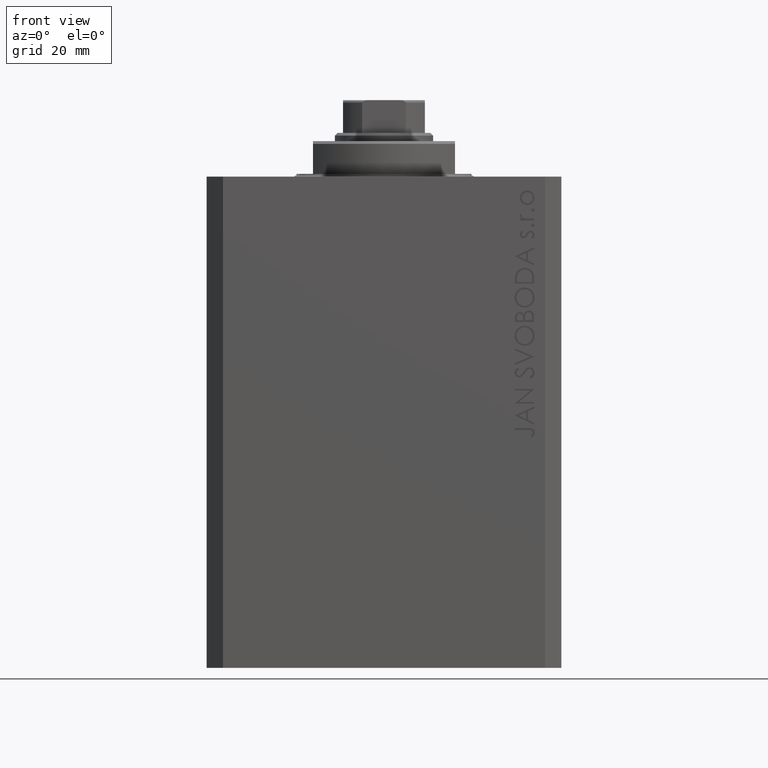
[diagram: clean part render]
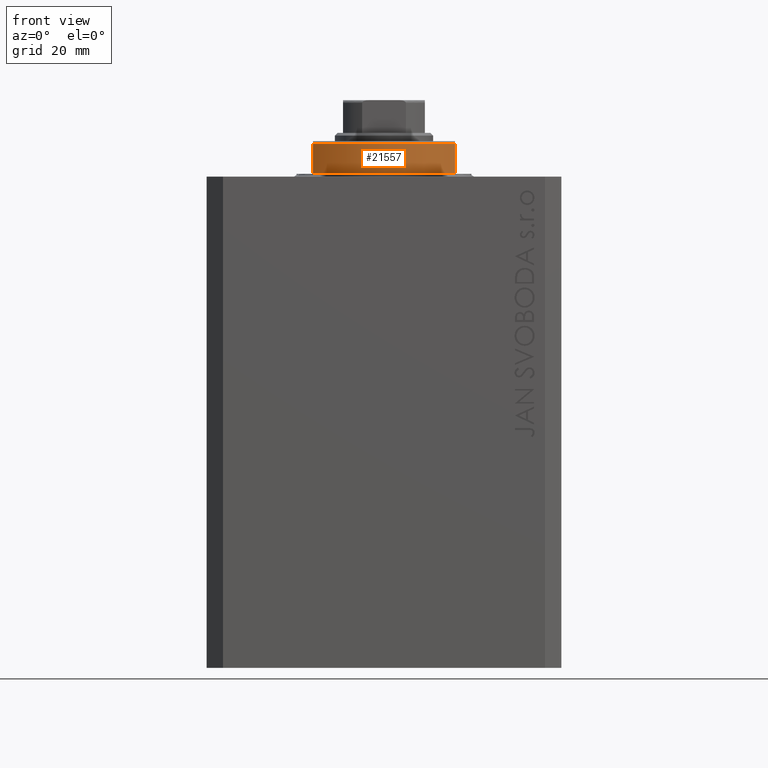
[diagram: same view with one face highlighted and labeled with its STEP entity id]
A machine part, front view. The second image highlights one B-rep face of the part: STEP entity #21557.
In plain terms, the highlighted cylindrical surface (partial cylindrical patch) has radius 16 mm, axis along (0, 0, -1).
Its self-contained STEP definition (entity closure, byte-faithful):
#40 = CARTESIAN_POINT ( 'NONE',  ( 13.00000000000000000, -9.327379053088813876, -6.500000000000000000 ) ) ;
#154 = CARTESIAN_POINT ( 'NONE',  ( -13.00000000000000000, -9.327379053088813876, -6.500000000000000000 ) ) ;
#2397 = EDGE_CURVE ( 'NONE', #17855, #3092, #14089, .T. ) ;
#3092 = VERTEX_POINT ( 'NONE', #13770 ) ;
#6622 = CYLINDRICAL_SURFACE ( 'NONE', #29142, 16.00000000000000000 ) ;
#6787 = EDGE_CURVE ( 'NONE', #25988, #17855, #32859, .T. ) ;
#7961 = DIRECTION ( 'NONE',  ( -0.000000000000000000, -0.000000000000000000, -1.000000000000000000 ) ) ;
#9518 = ORIENTED_EDGE ( 'NONE', *, *, #11914, .T. ) ;
#9967 = DIRECTION ( 'NONE',  ( -0.000000000000000000, -0.000000000000000000, 1.000000000000000000 ) ) ;
#10682 = DIRECTION ( 'NONE',  ( -1.000000000000000000, 0.000000000000000000, 0.000000000000000000 ) ) ;
#11777 = DIRECTION ( 'NONE',  ( 1.000000000000000000, 0.000000000000000000, 0.000000000000000000 ) ) ;
#11914 = EDGE_CURVE ( 'NONE', #21631, #25988, #16572, .T. ) ;
#13770 = CARTESIAN_POINT ( 'NONE',  ( 13.00000000000000000, -9.327379053088815652, -6.000000000000023981 ) ) ;
#14089 = CIRCLE ( 'NONE', #38491, 16.00000000000000000 ) ;
#14774 = ORIENTED_EDGE ( 'NONE', *, *, #31374, .F. ) ;
#16572 = CIRCLE ( 'NONE', #39452, 16.00000000000000000 ) ;
#17855 = VERTEX_POINT ( 'NONE', #41681 ) ;
#21557 = ADVANCED_FACE ( 'NONE', ( #39322 ), #6622, .T. ) ;
#21631 = VERTEX_POINT ( 'NONE', #45775 ) ;
#24856 = DIRECTION ( 'NONE',  ( 0.000000000000000000, 0.000000000000000000, -1.000000000000000000 ) ) ;
#25988 = VERTEX_POINT ( 'NONE', #41400 ) ;
#26147 = ORIENTED_EDGE ( 'NONE', *, *, #6787, .T. ) ;
#28560 = DIRECTION ( 'NONE',  ( 0.000000000000000000, 0.000000000000000000, -1.000000000000000000 ) ) ;
#29142 = AXIS2_PLACEMENT_3D ( 'NONE', #32159, #9967, #35497 ) ;
#31374 = EDGE_CURVE ( 'NONE', #21631, #3092, #38286, .T. ) ;
#32159 = CARTESIAN_POINT ( 'NONE',  ( 0.000000000000000000, 0.000000000000000000, -6.500000000000000000 ) ) ;
#32550 = VECTOR ( 'NONE', #28560, 1000.000000000000000 ) ;
#32630 = ORIENTED_EDGE ( 'NONE', *, *, #2397, .T. ) ;
#32859 = LINE ( 'NONE', #154, #32550 ) ;
#33509 = CARTESIAN_POINT ( 'NONE',  ( 0.000000000000000000, 0.000000000000000000, -0.4999999999999995559 ) ) ;
#35497 = DIRECTION ( 'NONE',  ( 1.000000000000000000, 0.000000000000000000, 0.000000000000000000 ) ) ;
#38286 = LINE ( 'NONE', #40, #39509 ) ;
#38491 = AXIS2_PLACEMENT_3D ( 'NONE', #43845, #44085, #10682 ) ;
#38929 = EDGE_LOOP ( 'NONE', ( #14774, #9518, #26147, #32630 ) ) ;
#39322 = FACE_OUTER_BOUND ( 'NONE', #38929, .T. ) ;
#39452 = AXIS2_PLACEMENT_3D ( 'NONE', #33509, #7961, #11777 ) ;
#39509 = VECTOR ( 'NONE', #24856, 1000.000000000000000 ) ;
#41400 = CARTESIAN_POINT ( 'NONE',  ( -13.00000000000000000, -9.327379053088815652, -0.4999999999999995559 ) ) ;
#41681 = CARTESIAN_POINT ( 'NONE',  ( -13.00000000000000000, -9.327379053088815652, -6.000000000000023981 ) ) ;
#43845 = CARTESIAN_POINT ( 'NONE',  ( 0.000000000000000000, 0.000000000000000000, -6.000000000000023981 ) ) ;
#44085 = DIRECTION ( 'NONE',  ( 0.000000000000000000, 0.000000000000000000, 1.000000000000000000 ) ) ;
#45775 = CARTESIAN_POINT ( 'NONE',  ( 13.00000000000000000, -9.327379053088815652, -0.4999999999999995559 ) ) ;